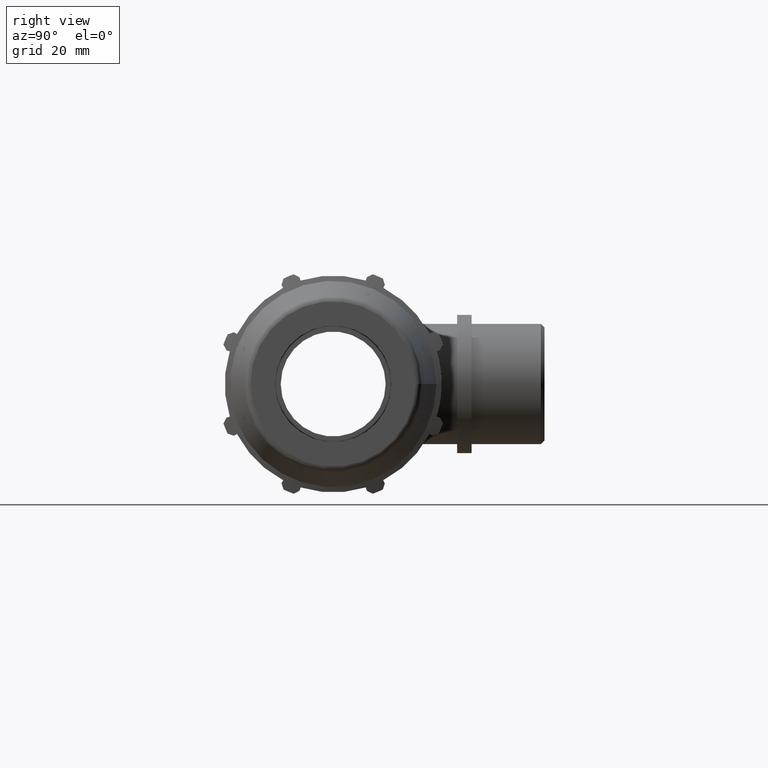
[diagram: clean part render]
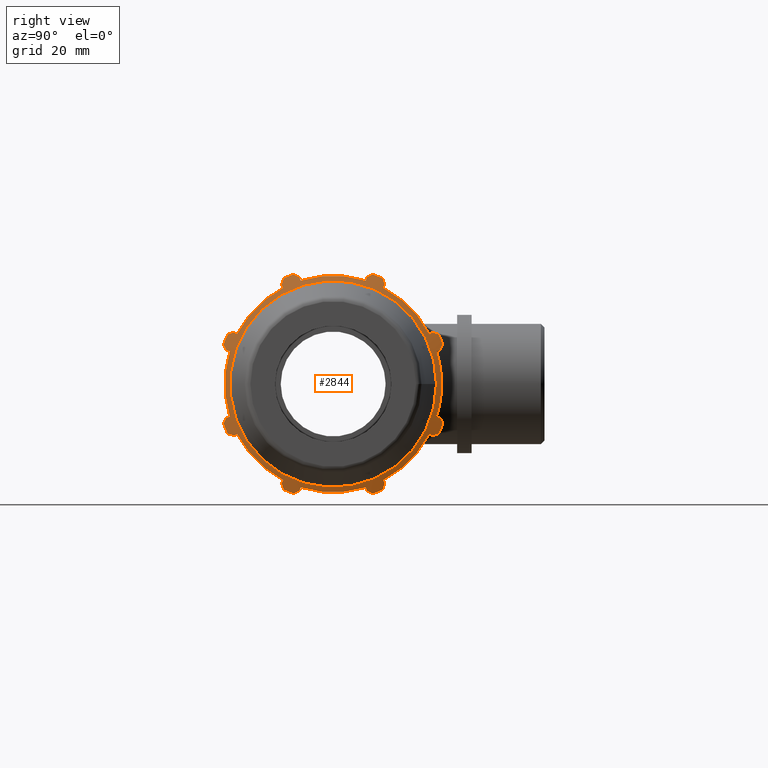
[diagram: same view with one face highlighted and labeled with its STEP entity id]
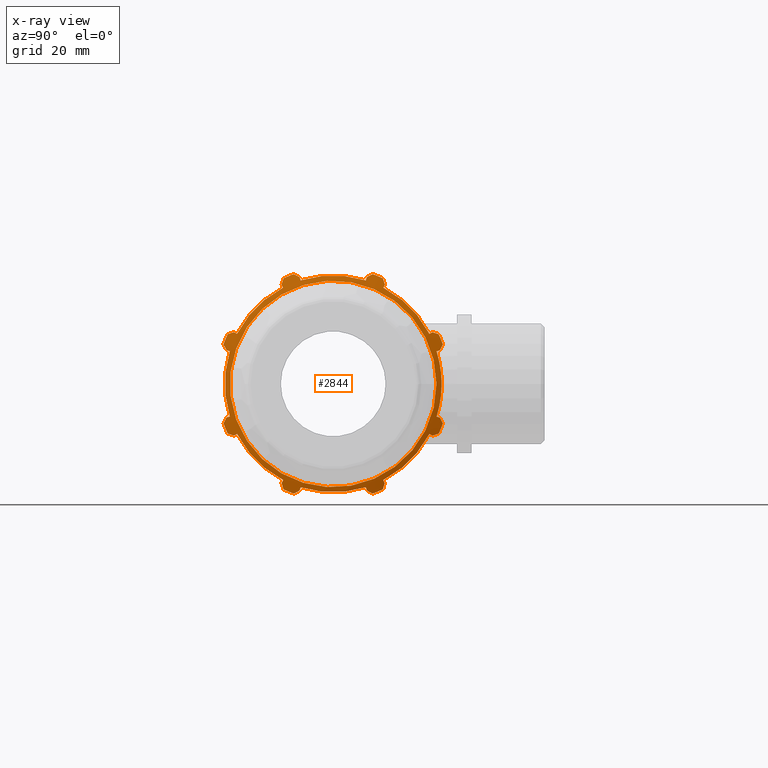
[diagram: x-ray of the same camera — body ghosted, the highlighted face saturated]
A machine part, right view. The second image highlights one B-rep face of the part: STEP entity #2844.
The next image is the same camera in x-ray: the body ghosted, the highlighted face saturated — about 0% of this face is hidden behind the body in this view.
In plain terms, the highlighted conical surface has half-angle 72 deg.
Its self-contained STEP definition (entity closure, byte-faithful):
#136=(
BOUNDED_CURVE()
B_SPLINE_CURVE(2,(#4569,#4570,#4571),.UNSPECIFIED.,.F.,.F.)
B_SPLINE_CURVE_WITH_KNOTS((3,3),(0.,0.176117298730999),.UNSPECIFIED.)
CURVE()
GEOMETRIC_REPRESENTATION_ITEM()
RATIONAL_B_SPLINE_CURVE((1.,1.00127360499051,1.00173042484097))
REPRESENTATION_ITEM('')
);
#139=(
BOUNDED_CURVE()
B_SPLINE_CURVE(2,(#4595,#4596,#4597),.UNSPECIFIED.,.F.,.F.)
B_SPLINE_CURVE_WITH_KNOTS((3,3),(0.,0.176117298730953),.UNSPECIFIED.)
CURVE()
GEOMETRIC_REPRESENTATION_ITEM()
RATIONAL_B_SPLINE_CURVE((1.,1.00127360499078,1.00173042484133))
REPRESENTATION_ITEM('')
);
#142=(
BOUNDED_CURVE()
B_SPLINE_CURVE(2,(#4621,#4622,#4623),.UNSPECIFIED.,.F.,.F.)
B_SPLINE_CURVE_WITH_KNOTS((3,3),(0.,0.17611729873099),.UNSPECIFIED.)
CURVE()
GEOMETRIC_REPRESENTATION_ITEM()
RATIONAL_B_SPLINE_CURVE((1.,1.00127360499056,1.00173042484104))
REPRESENTATION_ITEM('')
);
#145=(
BOUNDED_CURVE()
B_SPLINE_CURVE(2,(#4647,#4648,#4649),.UNSPECIFIED.,.F.,.F.)
B_SPLINE_CURVE_WITH_KNOTS((3,3),(0.,0.17611729873097),.UNSPECIFIED.)
CURVE()
GEOMETRIC_REPRESENTATION_ITEM()
RATIONAL_B_SPLINE_CURVE((1.,1.00127360499058,1.00173042484107))
REPRESENTATION_ITEM('')
);
#148=(
BOUNDED_CURVE()
B_SPLINE_CURVE(2,(#4673,#4674,#4675),.UNSPECIFIED.,.F.,.F.)
B_SPLINE_CURVE_WITH_KNOTS((3,3),(0.,0.1761172987309),.UNSPECIFIED.)
CURVE()
GEOMETRIC_REPRESENTATION_ITEM()
RATIONAL_B_SPLINE_CURVE((1.,1.00127360499104,1.00173042484169))
REPRESENTATION_ITEM('')
);
#151=(
BOUNDED_CURVE()
B_SPLINE_CURVE(2,(#4699,#4700,#4701),.UNSPECIFIED.,.F.,.F.)
B_SPLINE_CURVE_WITH_KNOTS((3,3),(0.,0.176117298730956),.UNSPECIFIED.)
CURVE()
GEOMETRIC_REPRESENTATION_ITEM()
RATIONAL_B_SPLINE_CURVE((1.,1.00127360499076,1.0017304248413))
REPRESENTATION_ITEM('')
);
#154=(
BOUNDED_CURVE()
B_SPLINE_CURVE(2,(#4725,#4726,#4727),.UNSPECIFIED.,.F.,.F.)
B_SPLINE_CURVE_WITH_KNOTS((3,3),(0.,0.176117298730926),.UNSPECIFIED.)
CURVE()
GEOMETRIC_REPRESENTATION_ITEM()
RATIONAL_B_SPLINE_CURVE((1.,1.00127360499071,1.00173042484124))
REPRESENTATION_ITEM('')
);
#157=(
BOUNDED_CURVE()
B_SPLINE_CURVE(2,(#4751,#4752,#4753),.UNSPECIFIED.,.F.,.F.)
B_SPLINE_CURVE_WITH_KNOTS((3,3),(0.,0.176117298730942),.UNSPECIFIED.)
CURVE()
GEOMETRIC_REPRESENTATION_ITEM()
RATIONAL_B_SPLINE_CURVE((1.,1.00127360499049,1.00173042484094))
REPRESENTATION_ITEM('')
);
#158=(
BOUNDED_CURVE()
B_SPLINE_CURVE(2,(#4769,#4770,#4771),.UNSPECIFIED.,.F.,.F.)
B_SPLINE_CURVE_WITH_KNOTS((3,3),(0.373118625334305,0.549235924065355),
 .UNSPECIFIED.)
CURVE()
GEOMETRIC_REPRESENTATION_ITEM()
RATIONAL_B_SPLINE_CURVE((1.00173042484089,1.00127360499045,1.))
REPRESENTATION_ITEM('')
);
#159=(
BOUNDED_CURVE()
B_SPLINE_CURVE(2,(#4782,#4783,#4784),.UNSPECIFIED.,.F.,.F.)
B_SPLINE_CURVE_WITH_KNOTS((3,3),(0.373118625334399,0.54923592406525),
 .UNSPECIFIED.)
CURVE()
GEOMETRIC_REPRESENTATION_ITEM()
RATIONAL_B_SPLINE_CURVE((1.0017304248414,1.00127360499083,1.))
REPRESENTATION_ITEM('')
);
#160=(
BOUNDED_CURVE()
B_SPLINE_CURVE(2,(#4791,#4792,#4793),.UNSPECIFIED.,.F.,.F.)
B_SPLINE_CURVE_WITH_KNOTS((3,3),(0.37311862533439,0.549235924065285),
 .UNSPECIFIED.)
CURVE()
GEOMETRIC_REPRESENTATION_ITEM()
RATIONAL_B_SPLINE_CURVE((1.00173042484161,1.00127360499098,1.))
REPRESENTATION_ITEM('')
);
#161=(
BOUNDED_CURVE()
B_SPLINE_CURVE(2,(#4800,#4801,#4802),.UNSPECIFIED.,.F.,.F.)
B_SPLINE_CURVE_WITH_KNOTS((3,3),(0.373118625334319,0.549235924065304),
 .UNSPECIFIED.)
CURVE()
GEOMETRIC_REPRESENTATION_ITEM()
RATIONAL_B_SPLINE_CURVE((1.00173042484093,1.00127360499048,1.))
REPRESENTATION_ITEM('')
);
#162=(
BOUNDED_CURVE()
B_SPLINE_CURVE(2,(#4809,#4810,#4811),.UNSPECIFIED.,.F.,.F.)
B_SPLINE_CURVE_WITH_KNOTS((3,3),(0.373118625334356,0.549235924065311),
 .UNSPECIFIED.)
CURVE()
GEOMETRIC_REPRESENTATION_ITEM()
RATIONAL_B_SPLINE_CURVE((1.00173042484125,1.00127360499071,1.))
REPRESENTATION_ITEM('')
);
#163=(
BOUNDED_CURVE()
B_SPLINE_CURVE(2,(#4818,#4819,#4820),.UNSPECIFIED.,.F.,.F.)
B_SPLINE_CURVE_WITH_KNOTS((3,3),(0.373118625334382,0.549235924065306),
 .UNSPECIFIED.)
CURVE()
GEOMETRIC_REPRESENTATION_ITEM()
RATIONAL_B_SPLINE_CURVE((1.0017304248412,1.00127360499068,1.))
REPRESENTATION_ITEM('')
);
#164=(
BOUNDED_CURVE()
B_SPLINE_CURVE(2,(#4827,#4828,#4829),.UNSPECIFIED.,.F.,.F.)
B_SPLINE_CURVE_WITH_KNOTS((3,3),(0.373118625334304,0.549235924065312),
 .UNSPECIFIED.)
CURVE()
GEOMETRIC_REPRESENTATION_ITEM()
RATIONAL_B_SPLINE_CURVE((1.00173042484097,1.00127360499051,1.))
REPRESENTATION_ITEM('')
);
#165=(
BOUNDED_CURVE()
B_SPLINE_CURVE(2,(#4836,#4837,#4838),.UNSPECIFIED.,.F.,.F.)
B_SPLINE_CURVE_WITH_KNOTS((3,3),(0.373118625334408,0.549235924065325),
 .UNSPECIFIED.)
CURVE()
GEOMETRIC_REPRESENTATION_ITEM()
RATIONAL_B_SPLINE_CURVE((1.00173042484154,1.00127360499093,1.))
REPRESENTATION_ITEM('')
);
#251=CIRCLE('',#3091,29.76);
#252=CIRCLE('',#3092,32.);
#253=CIRCLE('',#3093,29.76);
#254=CIRCLE('',#3094,32.);
#255=CIRCLE('',#3095,29.76);
#256=CIRCLE('',#3096,32.);
#257=CIRCLE('',#3097,29.76);
#258=CIRCLE('',#3098,32.);
#259=CIRCLE('',#3099,29.76);
#260=CIRCLE('',#3100,32.);
#261=CIRCLE('',#3101,29.76);
#262=CIRCLE('',#3102,32.);
#263=CIRCLE('',#3103,29.76);
#264=CIRCLE('',#3104,32.);
#265=CIRCLE('',#3105,29.76);
#266=CIRCLE('',#3106,32.);
#267=CIRCLE('',#3107,28.3361538580685);
#402=LINE('',#4564,#596);
#408=LINE('',#4590,#602);
#414=LINE('',#4616,#608);
#420=LINE('',#4642,#614);
#426=LINE('',#4668,#620);
#432=LINE('',#4694,#626);
#438=LINE('',#4720,#632);
#444=LINE('',#4746,#638);
#450=LINE('',#4776,#644);
#451=LINE('',#4786,#645);
#452=LINE('',#4795,#646);
#453=LINE('',#4804,#647);
#454=LINE('',#4813,#648);
#455=LINE('',#4822,#649);
#456=LINE('',#4831,#650);
#457=LINE('',#4840,#651);
#596=VECTOR('',#3598,1.0094037352687);
#602=VECTOR('',#3612,1.00940373526869);
#608=VECTOR('',#3626,1.00940373526869);
#614=VECTOR('',#3640,1.0094037352687);
#620=VECTOR('',#3654,1.0094037352687);
#626=VECTOR('',#3668,1.00940373526871);
#632=VECTOR('',#3682,1.00940373526871);
#638=VECTOR('',#3696,1.00940373526871);
#644=VECTOR('',#3722,1.00940373526872);
#645=VECTOR('',#3729,1.00940373526871);
#646=VECTOR('',#3734,1.00940373526871);
#647=VECTOR('',#3739,1.0094037352687);
#648=VECTOR('',#3744,1.0094037352687);
#649=VECTOR('',#3749,1.0094037352687);
#650=VECTOR('',#3754,1.0094037352687);
#651=VECTOR('',#3759,1.0094037352687);
#696=CONICAL_SURFACE('',#3090,30.1680769290342,72.0000000000001);
#721=FACE_BOUND('',#1029,.T.);
#849=FACE_OUTER_BOUND('',#1028,.T.);
#1028=EDGE_LOOP('',(#2303,#2304,#2305,#2306,#2307,#2308,#2309,#2310,#2311,
#2312,#2313,#2314,#2315,#2316,#2317,#2318,#2319,#2320,#2321,#2322,#2323,
#2324,#2325,#2326,#2327,#2328,#2329,#2330,#2331,#2332,#2333,#2334,#2335,
#2336,#2337,#2338,#2339,#2340,#2341,#2342,#2343,#2344,#2345,#2346,#2347,
#2348,#2349,#2350));
#1029=EDGE_LOOP('',(#2351));
#1280=VERTEX_POINT('',#4561);
#1281=VERTEX_POINT('',#4563);
#1282=VERTEX_POINT('',#4567);
#1287=VERTEX_POINT('',#4587);
#1288=VERTEX_POINT('',#4589);
#1289=VERTEX_POINT('',#4593);
#1294=VERTEX_POINT('',#4613);
#1295=VERTEX_POINT('',#4615);
#1296=VERTEX_POINT('',#4619);
#1301=VERTEX_POINT('',#4639);
#1302=VERTEX_POINT('',#4641);
#1303=VERTEX_POINT('',#4645);
#1308=VERTEX_POINT('',#4665);
#1309=VERTEX_POINT('',#4667);
#1310=VERTEX_POINT('',#4671);
#1315=VERTEX_POINT('',#4691);
#1316=VERTEX_POINT('',#4693);
#1317=VERTEX_POINT('',#4697);
#1322=VERTEX_POINT('',#4717);
#1323=VERTEX_POINT('',#4719);
#1324=VERTEX_POINT('',#4723);
#1329=VERTEX_POINT('',#4743);
#1330=VERTEX_POINT('',#4745);
#1331=VERTEX_POINT('',#4749);
#1336=VERTEX_POINT('',#4766);
#1337=VERTEX_POINT('',#4768);
#1338=VERTEX_POINT('',#4774);
#1339=VERTEX_POINT('',#4779);
#1340=VERTEX_POINT('',#4781);
#1341=VERTEX_POINT('',#4785);
#1342=VERTEX_POINT('',#4788);
#1343=VERTEX_POINT('',#4790);
#1344=VERTEX_POINT('',#4794);
#1345=VERTEX_POINT('',#4797);
#1346=VERTEX_POINT('',#4799);
#1347=VERTEX_POINT('',#4803);
#1348=VERTEX_POINT('',#4806);
#1349=VERTEX_POINT('',#4808);
#1350=VERTEX_POINT('',#4812);
#1351=VERTEX_POINT('',#4815);
#1352=VERTEX_POINT('',#4817);
#1353=VERTEX_POINT('',#4821);
#1354=VERTEX_POINT('',#4824);
#1355=VERTEX_POINT('',#4826);
#1356=VERTEX_POINT('',#4830);
#1357=VERTEX_POINT('',#4833);
#1358=VERTEX_POINT('',#4835);
#1359=VERTEX_POINT('',#4839);
#1360=VERTEX_POINT('',#4843);
#1608=EDGE_CURVE('',#1281,#1280,#402,.T.);
#1611=EDGE_CURVE('',#1282,#1280,#136,.T.);
#1618=EDGE_CURVE('',#1288,#1287,#408,.T.);
#1621=EDGE_CURVE('',#1289,#1287,#139,.T.);
#1628=EDGE_CURVE('',#1295,#1294,#414,.T.);
#1631=EDGE_CURVE('',#1296,#1294,#142,.T.);
#1638=EDGE_CURVE('',#1302,#1301,#420,.T.);
#1641=EDGE_CURVE('',#1303,#1301,#145,.T.);
#1648=EDGE_CURVE('',#1309,#1308,#426,.T.);
#1651=EDGE_CURVE('',#1310,#1308,#148,.T.);
#1658=EDGE_CURVE('',#1316,#1315,#432,.T.);
#1661=EDGE_CURVE('',#1317,#1315,#151,.T.);
#1668=EDGE_CURVE('',#1323,#1322,#438,.T.);
#1671=EDGE_CURVE('',#1324,#1322,#154,.T.);
#1678=EDGE_CURVE('',#1330,#1329,#444,.T.);
#1681=EDGE_CURVE('',#1331,#1329,#157,.T.);
#1687=EDGE_CURVE('',#1336,#1337,#158,.T.);
#1690=EDGE_CURVE('',#1336,#1338,#450,.T.);
#1691=EDGE_CURVE('',#1338,#1323,#251,.T.);
#1692=EDGE_CURVE('',#1324,#1339,#252,.T.);
#1693=EDGE_CURVE('',#1340,#1339,#159,.T.);
#1694=EDGE_CURVE('',#1340,#1341,#451,.T.);
#1695=EDGE_CURVE('',#1341,#1330,#253,.T.);
#1696=EDGE_CURVE('',#1331,#1342,#254,.T.);
#1697=EDGE_CURVE('',#1343,#1342,#160,.T.);
#1698=EDGE_CURVE('',#1343,#1344,#452,.T.);
#1699=EDGE_CURVE('',#1344,#1281,#255,.T.);
#1700=EDGE_CURVE('',#1282,#1345,#256,.T.);
#1701=EDGE_CURVE('',#1346,#1345,#161,.T.);
#1702=EDGE_CURVE('',#1346,#1347,#453,.T.);
#1703=EDGE_CURVE('',#1347,#1288,#257,.T.);
#1704=EDGE_CURVE('',#1289,#1348,#258,.T.);
#1705=EDGE_CURVE('',#1349,#1348,#162,.T.);
#1706=EDGE_CURVE('',#1349,#1350,#454,.T.);
#1707=EDGE_CURVE('',#1350,#1295,#259,.T.);
#1708=EDGE_CURVE('',#1296,#1351,#260,.T.);
#1709=EDGE_CURVE('',#1352,#1351,#163,.T.);
#1710=EDGE_CURVE('',#1352,#1353,#455,.T.);
#1711=EDGE_CURVE('',#1353,#1302,#261,.T.);
#1712=EDGE_CURVE('',#1303,#1354,#262,.T.);
#1713=EDGE_CURVE('',#1355,#1354,#164,.T.);
#1714=EDGE_CURVE('',#1355,#1356,#456,.T.);
#1715=EDGE_CURVE('',#1356,#1309,#263,.T.);
#1716=EDGE_CURVE('',#1310,#1357,#264,.T.);
#1717=EDGE_CURVE('',#1358,#1357,#165,.T.);
#1718=EDGE_CURVE('',#1358,#1359,#457,.T.);
#1719=EDGE_CURVE('',#1359,#1316,#265,.T.);
#1720=EDGE_CURVE('',#1317,#1337,#266,.T.);
#1721=EDGE_CURVE('',#1360,#1360,#267,.T.);
#2303=ORIENTED_EDGE('',*,*,#1687,.F.);
#2304=ORIENTED_EDGE('',*,*,#1690,.T.);
#2305=ORIENTED_EDGE('',*,*,#1691,.T.);
#2306=ORIENTED_EDGE('',*,*,#1668,.T.);
#2307=ORIENTED_EDGE('',*,*,#1671,.F.);
#2308=ORIENTED_EDGE('',*,*,#1692,.T.);
#2309=ORIENTED_EDGE('',*,*,#1693,.F.);
#2310=ORIENTED_EDGE('',*,*,#1694,.T.);
#2311=ORIENTED_EDGE('',*,*,#1695,.T.);
#2312=ORIENTED_EDGE('',*,*,#1678,.T.);
#2313=ORIENTED_EDGE('',*,*,#1681,.F.);
#2314=ORIENTED_EDGE('',*,*,#1696,.T.);
#2315=ORIENTED_EDGE('',*,*,#1697,.F.);
#2316=ORIENTED_EDGE('',*,*,#1698,.T.);
#2317=ORIENTED_EDGE('',*,*,#1699,.T.);
#2318=ORIENTED_EDGE('',*,*,#1608,.T.);
#2319=ORIENTED_EDGE('',*,*,#1611,.F.);
#2320=ORIENTED_EDGE('',*,*,#1700,.T.);
#2321=ORIENTED_EDGE('',*,*,#1701,.F.);
#2322=ORIENTED_EDGE('',*,*,#1702,.T.);
#2323=ORIENTED_EDGE('',*,*,#1703,.T.);
#2324=ORIENTED_EDGE('',*,*,#1618,.T.);
#2325=ORIENTED_EDGE('',*,*,#1621,.F.);
#2326=ORIENTED_EDGE('',*,*,#1704,.T.);
#2327=ORIENTED_EDGE('',*,*,#1705,.F.);
#2328=ORIENTED_EDGE('',*,*,#1706,.T.);
#2329=ORIENTED_EDGE('',*,*,#1707,.T.);
#2330=ORIENTED_EDGE('',*,*,#1628,.T.);
#2331=ORIENTED_EDGE('',*,*,#1631,.F.);
#2332=ORIENTED_EDGE('',*,*,#1708,.T.);
#2333=ORIENTED_EDGE('',*,*,#1709,.F.);
#2334=ORIENTED_EDGE('',*,*,#1710,.T.);
#2335=ORIENTED_EDGE('',*,*,#1711,.T.);
#2336=ORIENTED_EDGE('',*,*,#1638,.T.);
#2337=ORIENTED_EDGE('',*,*,#1641,.F.);
#2338=ORIENTED_EDGE('',*,*,#1712,.T.);
#2339=ORIENTED_EDGE('',*,*,#1713,.F.);
#2340=ORIENTED_EDGE('',*,*,#1714,.T.);
#2341=ORIENTED_EDGE('',*,*,#1715,.T.);
#2342=ORIENTED_EDGE('',*,*,#1648,.T.);
#2343=ORIENTED_EDGE('',*,*,#1651,.F.);
#2344=ORIENTED_EDGE('',*,*,#1716,.T.);
#2345=ORIENTED_EDGE('',*,*,#1717,.F.);
#2346=ORIENTED_EDGE('',*,*,#1718,.T.);
#2347=ORIENTED_EDGE('',*,*,#1719,.T.);
#2348=ORIENTED_EDGE('',*,*,#1658,.T.);
#2349=ORIENTED_EDGE('',*,*,#1661,.F.);
#2350=ORIENTED_EDGE('',*,*,#1720,.T.);
#2351=ORIENTED_EDGE('',*,*,#1721,.F.);
#2844=ADVANCED_FACE('',(#849,#721),#696,.T.);
#3090=AXIS2_PLACEMENT_3D('',#4777,#3723,#3724);
#3091=AXIS2_PLACEMENT_3D('',#4778,#3725,#3726);
#3092=AXIS2_PLACEMENT_3D('',#4780,#3727,#3728);
#3093=AXIS2_PLACEMENT_3D('',#4787,#3730,#3731);
#3094=AXIS2_PLACEMENT_3D('',#4789,#3732,#3733);
#3095=AXIS2_PLACEMENT_3D('',#4796,#3735,#3736);
#3096=AXIS2_PLACEMENT_3D('',#4798,#3737,#3738);
#3097=AXIS2_PLACEMENT_3D('',#4805,#3740,#3741);
#3098=AXIS2_PLACEMENT_3D('',#4807,#3742,#3743);
#3099=AXIS2_PLACEMENT_3D('',#4814,#3745,#3746);
#3100=AXIS2_PLACEMENT_3D('',#4816,#3747,#3748);
#3101=AXIS2_PLACEMENT_3D('',#4823,#3750,#3751);
#3102=AXIS2_PLACEMENT_3D('',#4825,#3752,#3753);
#3103=AXIS2_PLACEMENT_3D('',#4832,#3755,#3756);
#3104=AXIS2_PLACEMENT_3D('',#4834,#3757,#3758);
#3105=AXIS2_PLACEMENT_3D('',#4841,#3760,#3761);
#3106=AXIS2_PLACEMENT_3D('',#4842,#3762,#3763);
#3107=AXIS2_PLACEMENT_3D('',#4844,#3764,#3765);
#3598=DIRECTION('',(-0.309016994374947,-0.285988210106283,0.907038720710245));
#3612=DIRECTION('',(-0.309016994374947,-0.843597432918542,0.43914902750743));
#3626=DIRECTION('',(-0.309016994374946,-0.907038720710246,-0.285988210106283));
#3640=DIRECTION('',(-0.309016994374946,-0.43914902750743,-0.843597432918542));
#3654=DIRECTION('',(-0.309016994374947,0.285988210106283,-0.907038720710245));
#3668=DIRECTION('',(-0.309016994374947,0.843597432918541,-0.43914902750743));
#3682=DIRECTION('',(-0.309016994374947,0.907038720710245,0.285988210106283));
#3696=DIRECTION('',(-0.309016994374947,0.43914902750743,0.843597432918541));
#3722=DIRECTION('',(0.309016994374947,-0.907038720710245,0.285988210106283));
#3723=DIRECTION('center_axis',(-1.,-4.75609664075873E-16,0.));
#3724=DIRECTION('ref_axis',(0.,1.,0.));
#3725=DIRECTION('center_axis',(1.,4.73964244779756E-16,0.));
#3726=DIRECTION('ref_axis',(4.52027734295035E-16,-0.953716950748227,-0.300705799504273));
#3727=DIRECTION('center_axis',(1.,4.75609664075873E-16,0.));
#3728=DIRECTION('ref_axis',(0.,0.,-1.));
#3729=DIRECTION('',(0.309016994374947,-0.843597432918542,-0.43914902750743));
#3730=DIRECTION('center_axis',(1.,3.35143331523726E-16,3.35143331523726E-16));
#3731=DIRECTION('ref_axis',(4.52027734295035E-16,-0.461748613235034,-0.887010833178222));
#3732=DIRECTION('center_axis',(1.,4.75609664075873E-16,0.));
#3733=DIRECTION('ref_axis',(0.,0.,-1.));
#3734=DIRECTION('',(0.309016994374947,-0.285988210106283,-0.907038720710245));
#3735=DIRECTION('center_axis',(1.,0.,4.73964244779756E-16));
#3736=DIRECTION('ref_axis',(4.52027734295035E-16,0.300705799504273,-0.953716950748227));
#3737=DIRECTION('center_axis',(1.,4.75609664075873E-16,0.));
#3738=DIRECTION('ref_axis',(0.,0.,-1.));
#3739=DIRECTION('',(0.309016994374946,0.43914902750743,-0.843597432918542));
#3740=DIRECTION('center_axis',(1.,-3.35143331523726E-16,3.35143331523726E-16));
#3741=DIRECTION('ref_axis',(4.52027734295035E-16,0.887010833178222,-0.461748613235034));
#3742=DIRECTION('center_axis',(1.,4.75609664075873E-16,0.));
#3743=DIRECTION('ref_axis',(0.,0.,-1.));
#3744=DIRECTION('',(0.309016994374946,0.907038720710246,-0.285988210106283));
#3745=DIRECTION('center_axis',(1.,-4.73964244779756E-16,9.86076131526265E-32));
#3746=DIRECTION('ref_axis',(4.52027734295035E-16,0.953716950748227,0.300705799504273));
#3747=DIRECTION('center_axis',(1.,4.75609664075873E-16,0.));
#3748=DIRECTION('ref_axis',(0.,0.,-1.));
#3749=DIRECTION('',(0.309016994374947,0.843597432918542,0.43914902750743));
#3750=DIRECTION('center_axis',(1.,-3.35143331523726E-16,-3.35143331523726E-16));
#3751=DIRECTION('ref_axis',(4.52027734295035E-16,0.461748613235034,0.887010833178221));
#3752=DIRECTION('center_axis',(1.,4.75609664075873E-16,0.));
#3753=DIRECTION('ref_axis',(0.,0.,-1.));
#3754=DIRECTION('',(0.309016994374947,0.285988210106283,0.907038720710245));
#3755=DIRECTION('center_axis',(1.,-9.86076131526265E-32,-4.73964244779756E-16));
#3756=DIRECTION('ref_axis',(4.52027734295035E-16,-0.300705799504273,0.953716950748227));
#3757=DIRECTION('center_axis',(1.,4.75609664075873E-16,0.));
#3758=DIRECTION('ref_axis',(0.,0.,-1.));
#3759=DIRECTION('',(0.309016994374947,-0.439149027507429,0.843597432918542));
#3760=DIRECTION('center_axis',(1.,3.35143331523726E-16,-3.35143331523726E-16));
#3761=DIRECTION('ref_axis',(4.52027734295035E-16,-0.887010833178221,0.461748613235034));
#3762=DIRECTION('center_axis',(1.,4.75609664075873E-16,0.));
#3763=DIRECTION('ref_axis',(0.,0.,-1.));
#3764=DIRECTION('center_axis',(1.,4.75609664075873E-16,0.));
#3765=DIRECTION('ref_axis',(0.,0.,-1.));
#4561=CARTESIAN_POINT('',(63.8254414356976,-9.23768216077124,29.2981847269855));
#4563=CARTESIAN_POINT('',(64.1373643440812,-8.94900459324715,28.3826164542673));
#4564=CARTESIAN_POINT('',(64.0047721122598,-9.07171569245163,28.7718063386965));
#4567=CARTESIAN_POINT('',(63.4095442245196,-10.8354010366677,30.1097008350229));
#4569=CARTESIAN_POINT('Ctrl Pts',(63.4095442245194,-10.8354010366683,30.1097008350232));
#4570=CARTESIAN_POINT('Ctrl Pts',(63.625810774332,-10.0202383448843,29.6956620043919));
#4571=CARTESIAN_POINT('Ctrl Pts',(63.8254414356976,-9.23768216077124,29.2981847269855));
#4587=CARTESIAN_POINT('',(63.8254414356977,-27.2489727952349,14.1849173985802));
#4589=CARTESIAN_POINT('',(64.1373643440812,-26.3974423953839,13.7416387298746));
#4590=CARTESIAN_POINT('',(64.0047721122598,-26.7594110522073,13.9300676859494));
#4593=CARTESIAN_POINT('',(63.4095442245196,-28.9525591898464,13.6289880900395));
#4595=CARTESIAN_POINT('Ctrl Pts',(63.4095442245194,-28.9525591898471,13.6289880900392));
#4596=CARTESIAN_POINT('Ctrl Pts',(63.6258107743321,-28.0833824579021,13.9126254923561));
#4597=CARTESIAN_POINT('Ctrl Pts',(63.8254414356977,-27.2489727952349,14.1849173985802));
#4613=CARTESIAN_POINT('',(63.8254414356977,-29.2981847269855,-9.23768216077126));
#4615=CARTESIAN_POINT('',(64.1373643440812,-28.3826164542672,-8.94900459324717));
#4616=CARTESIAN_POINT('',(64.0047721122598,-28.7718063386964,-9.07171569245164));
#4619=CARTESIAN_POINT('',(63.4095442245196,-30.1097008350229,-10.8354010366677));
#4621=CARTESIAN_POINT('Ctrl Pts',(63.4095442245194,-30.1097008350232,-10.8354010366684));
#4622=CARTESIAN_POINT('Ctrl Pts',(63.625810774332,-29.6956620043918,-10.0202383448843));
#4623=CARTESIAN_POINT('Ctrl Pts',(63.8254414356977,-29.2981847269855,-9.23768216077126));
#4639=CARTESIAN_POINT('',(63.8254414356977,-14.1849173985802,-27.248972795235));
#4641=CARTESIAN_POINT('',(64.1373643440812,-13.7416387298746,-26.3974423953839));
#4642=CARTESIAN_POINT('',(64.0047721122598,-13.9300676859494,-26.7594110522073));
#4645=CARTESIAN_POINT('',(63.4095442245195,-13.6289880900394,-28.9525591898464));
#4647=CARTESIAN_POINT('Ctrl Pts',(63.4095442245194,-13.6289880900392,-28.9525591898471));
#4648=CARTESIAN_POINT('Ctrl Pts',(63.625810774332,-13.912625492356,-28.0833824579023));
#4649=CARTESIAN_POINT('Ctrl Pts',(63.8254414356977,-14.1849173985802,-27.248972795235));
#4665=CARTESIAN_POINT('',(63.8254414356977,9.23768216077129,-29.2981847269855));
#4667=CARTESIAN_POINT('',(64.1373643440812,8.94900459324719,-28.3826164542673));
#4668=CARTESIAN_POINT('',(64.0047721122598,9.07171569245167,-28.7718063386965));
#4671=CARTESIAN_POINT('',(63.4095442245195,10.8354010366678,-30.1097008350229));
#4673=CARTESIAN_POINT('Ctrl Pts',(63.4095442245193,10.8354010366685,-30.1097008350233));
#4674=CARTESIAN_POINT('Ctrl Pts',(63.6258107743322,10.0202383448838,-29.6956620043916));
#4675=CARTESIAN_POINT('Ctrl Pts',(63.8254414356977,9.23768216077129,-29.2981847269855));
#4691=CARTESIAN_POINT('',(63.8254414356976,27.248972795235,-14.1849173985803));
#4693=CARTESIAN_POINT('',(64.1373643440812,26.3974423953839,-13.7416387298746));
#4694=CARTESIAN_POINT('',(64.0047721122598,26.7594110522074,-13.9300676859494));
#4697=CARTESIAN_POINT('',(63.4095442245195,28.9525591898465,-13.6289880900395));
#4699=CARTESIAN_POINT('Ctrl Pts',(63.4095442245193,28.9525591898475,-13.6289880900391));
#4700=CARTESIAN_POINT('Ctrl Pts',(63.625810774332,28.0833824579022,-13.9126254923561));
#4701=CARTESIAN_POINT('Ctrl Pts',(63.8254414356976,27.248972795235,-14.1849173985803));
#4717=CARTESIAN_POINT('',(63.8254414356976,29.2981847269856,9.23768216077127));
#4719=CARTESIAN_POINT('',(64.1373643440812,28.3826164542673,8.94900459324717));
#4720=CARTESIAN_POINT('',(64.0047721122598,28.7718063386965,9.07171569245165));
#4723=CARTESIAN_POINT('',(63.4095442245195,30.1097008350229,10.8354010366677));
#4725=CARTESIAN_POINT('Ctrl Pts',(63.4095442245194,30.1097008350231,10.835401036668));
#4726=CARTESIAN_POINT('Ctrl Pts',(63.6258107743321,29.6956620043917,10.020238344884));
#4727=CARTESIAN_POINT('Ctrl Pts',(63.8254414356976,29.2981847269856,9.23768216077127));
#4743=CARTESIAN_POINT('',(63.8254414356976,14.1849173985803,27.248972795235));
#4745=CARTESIAN_POINT('',(64.1373643440812,13.7416387298746,26.3974423953839));
#4746=CARTESIAN_POINT('',(64.0047721122598,13.9300676859494,26.7594110522073));
#4749=CARTESIAN_POINT('',(63.4095442245195,13.6289880900395,28.9525591898464));
#4751=CARTESIAN_POINT('Ctrl Pts',(63.4095442245194,13.6289880900393,28.9525591898469));
#4752=CARTESIAN_POINT('Ctrl Pts',(63.625810774332,13.9126254923561,28.0833824579022));
#4753=CARTESIAN_POINT('Ctrl Pts',(63.8254414356976,14.1849173985803,27.248972795235));
#4766=CARTESIAN_POINT('',(63.8254414356976,29.2981847269856,-9.23768216077126));
#4768=CARTESIAN_POINT('',(63.4095442245195,30.1097008350229,-10.8354010366677));
#4769=CARTESIAN_POINT('Ctrl Pts',(63.8254414356976,29.2981847269856,-9.23768216077126));
#4770=CARTESIAN_POINT('Ctrl Pts',(63.6258107743319,29.695662004392,-10.0202383448847));
#4771=CARTESIAN_POINT('Ctrl Pts',(63.4095442245192,30.1097008350235,-10.8354010366688));
#4774=CARTESIAN_POINT('',(64.1373643440812,28.3826164542673,-8.94900459324717));
#4776=CARTESIAN_POINT('',(64.0047721122598,28.7718063386965,-9.07171569245165));
#4777=CARTESIAN_POINT('Origin',(64.0047721122598,3.04412881635647E-14,0.));
#4778=CARTESIAN_POINT('Origin',(64.1373643440812,3.04547617095745E-14,0.));
#4779=CARTESIAN_POINT('',(63.4095442245195,28.9525591898465,13.6289880900395));
#4780=CARTESIAN_POINT('Origin',(63.4095442245195,3.0158192027828E-14,0.));
#4781=CARTESIAN_POINT('',(63.8254414356976,27.248972795235,14.1849173985802));
#4782=CARTESIAN_POINT('Ctrl Pts',(63.8254414356976,27.248972795235,14.1849173985802));
#4783=CARTESIAN_POINT('Ctrl Pts',(63.6258107743322,28.0833824579017,13.9126254923562));
#4784=CARTESIAN_POINT('Ctrl Pts',(63.4095442245195,28.9525591898466,13.6289880900394));
#4785=CARTESIAN_POINT('',(64.1373643440812,26.3974423953839,13.7416387298746));
#4786=CARTESIAN_POINT('',(64.0047721122598,26.7594110522074,13.9300676859494));
#4787=CARTESIAN_POINT('Origin',(64.1373643440812,2.83194818645424E-14,5.15502156133852E-15));
#4788=CARTESIAN_POINT('',(63.4095442245195,10.8354010366678,30.1097008350229));
#4789=CARTESIAN_POINT('Origin',(63.4095442245195,3.0158192027828E-14,0.));
#4790=CARTESIAN_POINT('',(63.8254414356977,9.23768216077128,29.2981847269855));
#4791=CARTESIAN_POINT('Ctrl Pts',(63.8254414356977,9.23768216077128,29.2981847269855));
#4792=CARTESIAN_POINT('Ctrl Pts',(63.6258107743322,10.0202383448838,29.6956620043916));
#4793=CARTESIAN_POINT('Ctrl Pts',(63.4095442245194,10.8354010366682,30.1097008350231));
#4794=CARTESIAN_POINT('',(64.1373643440812,8.94900459324719,28.3826164542672));
#4795=CARTESIAN_POINT('',(64.0047721122598,9.07171569245167,28.7718063386965));
#4796=CARTESIAN_POINT('Origin',(64.1373643440812,2.31644603032038E-14,7.29030140637067E-15));
#4797=CARTESIAN_POINT('',(63.4095442245195,-13.6289880900394,28.9525591898464));
#4798=CARTESIAN_POINT('Origin',(63.4095442245195,3.0158192027828E-14,0.));
#4799=CARTESIAN_POINT('',(63.8254414356977,-14.1849173985802,27.248972795235));
#4800=CARTESIAN_POINT('Ctrl Pts',(63.8254414356977,-14.1849173985802,27.248972795235));
#4801=CARTESIAN_POINT('Ctrl Pts',(63.625810774332,-13.912625492356,28.0833824579024));
#4802=CARTESIAN_POINT('Ctrl Pts',(63.4095442245194,-13.6289880900392,28.9525591898471));
#4803=CARTESIAN_POINT('',(64.1373643440812,-13.7416387298746,26.3974423953839));
#4804=CARTESIAN_POINT('',(64.0047721122598,-13.9300676859494,26.7594110522073));
#4805=CARTESIAN_POINT('Origin',(64.1373643440812,1.80094387418653E-14,5.15502156133852E-15));
#4806=CARTESIAN_POINT('',(63.4095442245196,-30.1097008350229,10.8354010366677));
#4807=CARTESIAN_POINT('Origin',(63.4095442245195,3.0158192027828E-14,0.));
#4808=CARTESIAN_POINT('',(63.8254414356977,-29.2981847269855,9.23768216077127));
#4809=CARTESIAN_POINT('Ctrl Pts',(63.8254414356976,-29.2981847269855,9.23768216077127));
#4810=CARTESIAN_POINT('Ctrl Pts',(63.6258107743321,-29.6956620043917,10.0202383448842));
#4811=CARTESIAN_POINT('Ctrl Pts',(63.4095442245194,-30.1097008350232,10.8354010366684));
#4812=CARTESIAN_POINT('',(64.1373643440812,-28.3826164542672,8.94900459324717));
#4813=CARTESIAN_POINT('',(64.0047721122598,-28.7718063386964,9.07171569245165));
#4814=CARTESIAN_POINT('Origin',(64.1373643440812,1.58741588968332E-14,9.99621301628389E-31));
#4815=CARTESIAN_POINT('',(63.4095442245196,-28.9525591898464,-13.6289880900394));
#4816=CARTESIAN_POINT('Origin',(63.4095442245195,3.0158192027828E-14,0.));
#4817=CARTESIAN_POINT('',(63.8254414356977,-27.2489727952349,-14.1849173985802));
#4818=CARTESIAN_POINT('Ctrl Pts',(63.8254414356977,-27.2489727952349,-14.1849173985802));
#4819=CARTESIAN_POINT('Ctrl Pts',(63.6258107743321,-28.0833824579021,-13.9126254923561));
#4820=CARTESIAN_POINT('Ctrl Pts',(63.4095442245194,-28.9525591898471,-13.6289880900392));
#4821=CARTESIAN_POINT('',(64.1373643440812,-26.3974423953839,-13.7416387298746));
#4822=CARTESIAN_POINT('',(64.0047721122598,-26.7594110522073,-13.9300676859494));
#4823=CARTESIAN_POINT('Origin',(64.1373643440812,1.80094387418653E-14,-5.15502156133851E-15));
#4824=CARTESIAN_POINT('',(63.4095442245196,-10.8354010366677,-30.1097008350229));
#4825=CARTESIAN_POINT('Origin',(63.4095442245195,3.0158192027828E-14,0.));
#4826=CARTESIAN_POINT('',(63.8254414356977,-9.23768216077124,-29.2981847269855));
#4827=CARTESIAN_POINT('Ctrl Pts',(63.8254414356977,-9.23768216077124,-29.2981847269855));
#4828=CARTESIAN_POINT('Ctrl Pts',(63.625810774332,-10.0202383448844,-29.6956620043919));
#4829=CARTESIAN_POINT('Ctrl Pts',(63.4095442245194,-10.8354010366684,-30.1097008350233));
#4830=CARTESIAN_POINT('',(64.1373643440812,-8.94900459324715,-28.3826164542672));
#4831=CARTESIAN_POINT('',(64.0047721122598,-9.07171569245163,-28.7718063386965));
#4832=CARTESIAN_POINT('Origin',(64.1373643440812,2.31644603032038E-14,-7.29030140637066E-15));
#4833=CARTESIAN_POINT('',(63.4095442245195,13.6289880900395,-28.9525591898464));
#4834=CARTESIAN_POINT('Origin',(63.4095442245195,3.0158192027828E-14,0.));
#4835=CARTESIAN_POINT('',(63.8254414356976,14.1849173985803,-27.248972795235));
#4836=CARTESIAN_POINT('Ctrl Pts',(63.8254414356976,14.1849173985802,-27.248972795235));
#4837=CARTESIAN_POINT('Ctrl Pts',(63.6258107743321,13.9126254923561,-28.083382457902));
#4838=CARTESIAN_POINT('Ctrl Pts',(63.4095442245193,13.6289880900392,-28.9525591898474));
#4839=CARTESIAN_POINT('',(64.1373643440812,13.7416387298746,-26.3974423953839));
#4840=CARTESIAN_POINT('',(64.0047721122598,13.9300676859494,-26.7594110522073));
#4841=CARTESIAN_POINT('Origin',(64.1373643440812,2.83194818645424E-14,-5.15502156133853E-15));
#4842=CARTESIAN_POINT('Origin',(63.4095442245195,3.0158192027828E-14,0.));
#4843=CARTESIAN_POINT('',(64.6,28.3361538580685,0.));
#4844=CARTESIAN_POINT('Origin',(64.6,3.07243842993014E-14,0.));